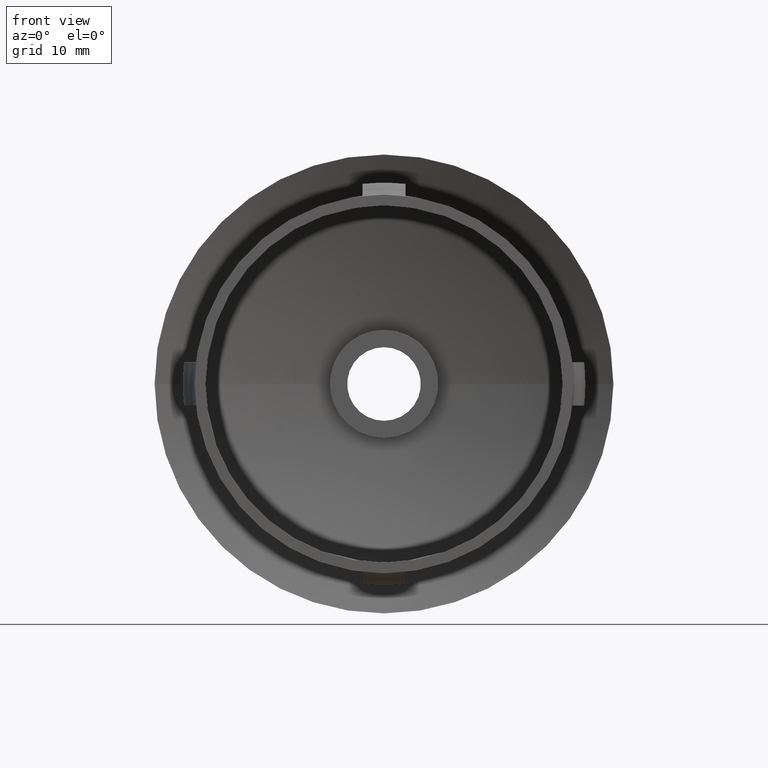
[diagram: clean part render]
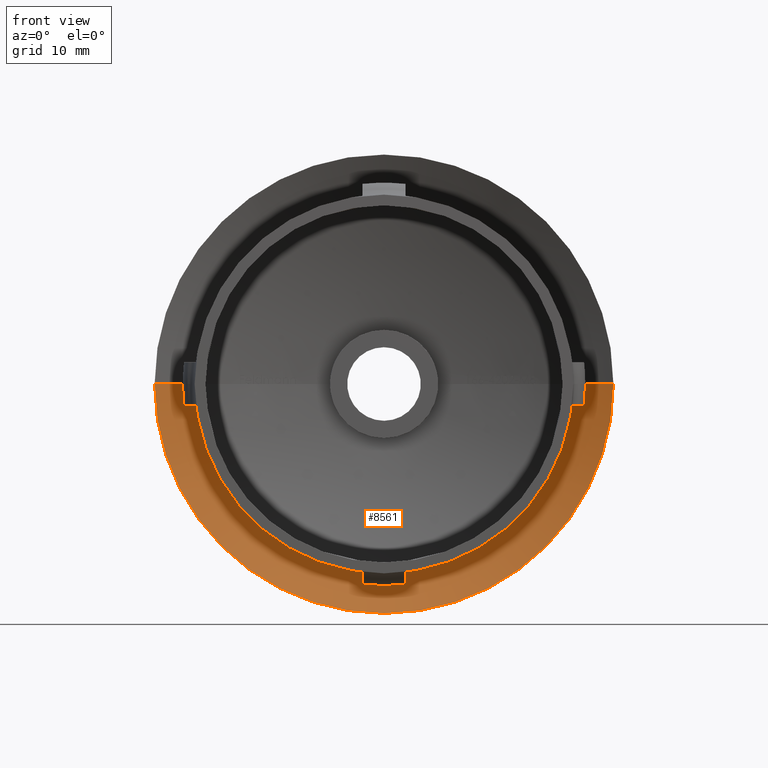
[diagram: same view with one face highlighted and labeled with its STEP entity id]
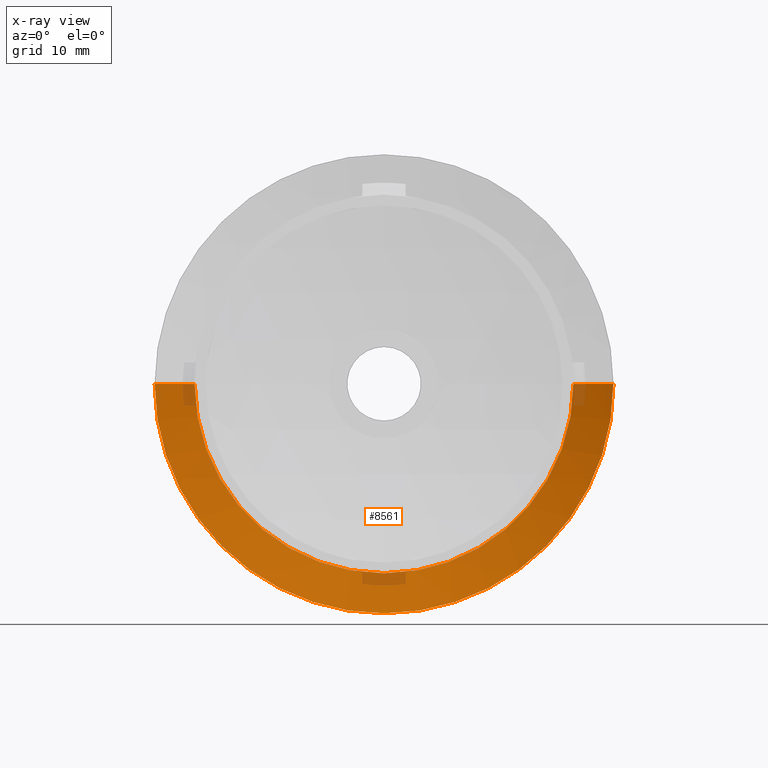
[diagram: x-ray of the same camera — body ghosted, the highlighted face saturated]
A machine part, front view. The second image highlights one B-rep face of the part: STEP entity #8561.
The next image is the same camera in x-ray: the body ghosted, the highlighted face saturated — about 4% of this face is hidden behind the body in this view.
In plain terms, the highlighted spherical surface has radius 47.5 mm.
Its self-contained STEP definition (entity closure, byte-faithful):
#1212 = ORIENTED_EDGE ( 'NONE', *, *, #5368, .F. ) ;
#1953 = CARTESIAN_POINT ( 'NONE',  ( 21.20000000000001000, 23.90658772472802000, 0.0000000000000000000 ) ) ;
#2153 = EDGE_CURVE ( 'NONE', #11142, #6927, #13719, .T. ) ;
#2606 = DIRECTION ( 'NONE',  ( 1.000000000000000000, -2.945756845998349400E-015, 0.0000000000000000000 ) ) ;
#3085 = DIRECTION ( 'NONE',  ( -0.0000000000000000000, 0.0000000000000000000, 1.000000000000000000 ) ) ;
#3611 = CARTESIAN_POINT ( 'NONE',  ( -4.200538521075421400E-015, -18.60000000000000500, 0.0000000000000000000 ) ) ;
#3816 = CARTESIAN_POINT ( 'NONE',  ( -17.50000000000001400, 25.55880433163933700, 2.369691556350132100E-015 ) ) ;
#3902 = DIRECTION ( 'NONE',  ( -2.904862207577519400E-015, -1.000000000000000000, -0.0000000000000000000 ) ) ;
#3950 = CARTESIAN_POINT ( 'NONE',  ( -21.19999999999990000, 23.90658772472814800, 2.596251214192391900E-015 ) ) ;
#4475 = ORIENTED_EDGE ( 'NONE', *, *, #7112, .T. ) ;
#4961 = AXIS2_PLACEMENT_3D ( 'NONE', #7469, #3902, #2606 ) ;
#4988 = CIRCLE ( 'NONE', #5898, 17.50000000000000400 ) ;
#5250 = CARTESIAN_POINT ( 'NONE',  ( -4.200538521075421400E-015, -18.60000000000000500, 0.0000000000000000000 ) ) ;
#5368 = EDGE_CURVE ( 'NONE', #15276, #11142, #4988, .T. ) ;
#5803 = CARTESIAN_POINT ( 'NONE',  ( -9.705713025142736400E-015, 25.55880433163928700, 0.0000000000000000000 ) ) ;
#5827 = SPHERICAL_SURFACE ( 'NONE', #11248, 47.50000000000000000 ) ;
#5898 = AXIS2_PLACEMENT_3D ( 'NONE', #5803, #7151, #13388 ) ;
#5987 = CARTESIAN_POINT ( 'NONE',  ( 17.49999999999999600, 25.55880433163923400, 0.0000000000000000000 ) ) ;
#6927 = VERTEX_POINT ( 'NONE', #1953 ) ;
#7112 = EDGE_CURVE ( 'NONE', #15276, #13751, #14965, .T. ) ;
#7151 = DIRECTION ( 'NONE',  ( -2.904862207577519400E-015, -1.000000000000000000, -0.0000000000000000000 ) ) ;
#7469 = CARTESIAN_POINT ( 'NONE',  ( -1.450517460529105200E-014, 23.90658772472808400, 0.0000000000000000000 ) ) ;
#7981 = DIRECTION ( 'NONE',  ( -1.000000000000000000, 0.0000000000000000000, 0.0000000000000000000 ) ) ;
#8343 = CIRCLE ( 'NONE', #4961, 21.20000000000001700 ) ;
#8561 = ADVANCED_FACE ( 'NONE', ( #12872 ), #5827, .F. ) ;
#8809 = ORIENTED_EDGE ( 'NONE', *, *, #2153, .F. ) ;
#8836 = DIRECTION ( 'NONE',  ( 1.000000000000000000, 0.0000000000000000000, -1.224646799147353200E-016 ) ) ;
#9327 = DIRECTION ( 'NONE',  ( 1.000000000000000000, -2.921639538487253900E-015, 0.0000000000000000000 ) ) ;
#9740 = EDGE_CURVE ( 'NONE', #13751, #6927, #8343, .T. ) ;
#11142 = VERTEX_POINT ( 'NONE', #5987 ) ;
#11248 = AXIS2_PLACEMENT_3D ( 'NONE', #15789, #3085, #9327 ) ;
#12614 = DIRECTION ( 'NONE',  ( 1.224646799147353200E-016, -3.557430204473923300E-031, 1.000000000000000000 ) ) ;
#12872 = FACE_OUTER_BOUND ( 'NONE', #15135, .T. ) ;
#13388 = DIRECTION ( 'NONE',  ( 1.000000000000000000, -2.973811673103097400E-015, 0.0000000000000000000 ) ) ;
#13719 = CIRCLE ( 'NONE', #15392, 47.50000000000000000 ) ;
#13751 = VERTEX_POINT ( 'NONE', #3950 ) ;
#14682 = ORIENTED_EDGE ( 'NONE', *, *, #9740, .T. ) ;
#14965 = CIRCLE ( 'NONE', #16090, 47.50000000000000000 ) ;
#15135 = EDGE_LOOP ( 'NONE', ( #1212, #4475, #14682, #8809 ) ) ;
#15276 = VERTEX_POINT ( 'NONE', #3816 ) ;
#15279 = DIRECTION ( 'NONE',  ( 0.0000000000000000000, 0.0000000000000000000, -1.000000000000000000 ) ) ;
#15392 = AXIS2_PLACEMENT_3D ( 'NONE', #5250, #15279, #7981 ) ;
#15789 = CARTESIAN_POINT ( 'NONE',  ( -4.200538521075421400E-015, -18.60000000000000500, 0.0000000000000000000 ) ) ;
#16090 = AXIS2_PLACEMENT_3D ( 'NONE', #3611, #12614, #8836 ) ;